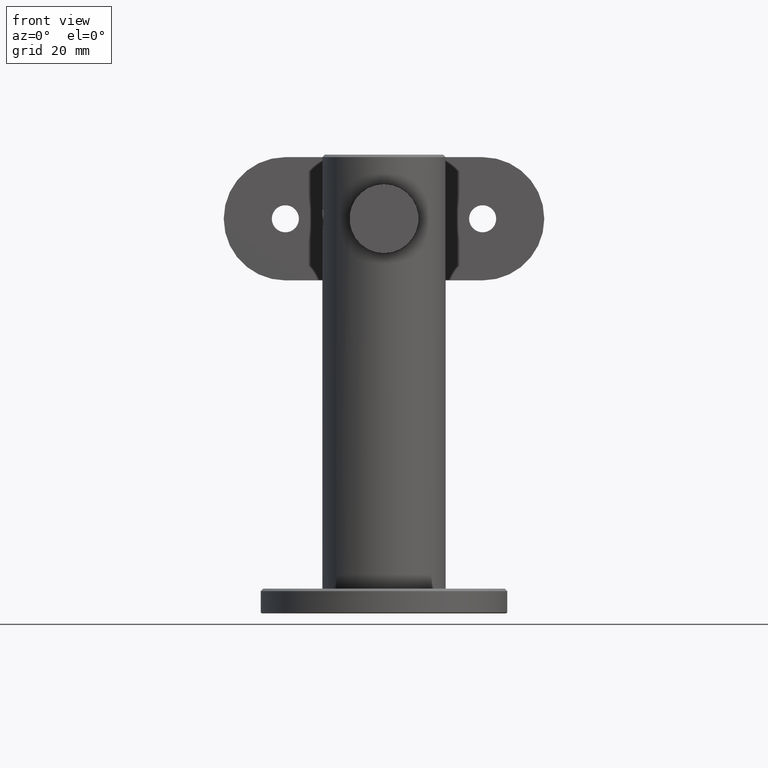
[diagram: clean part render]
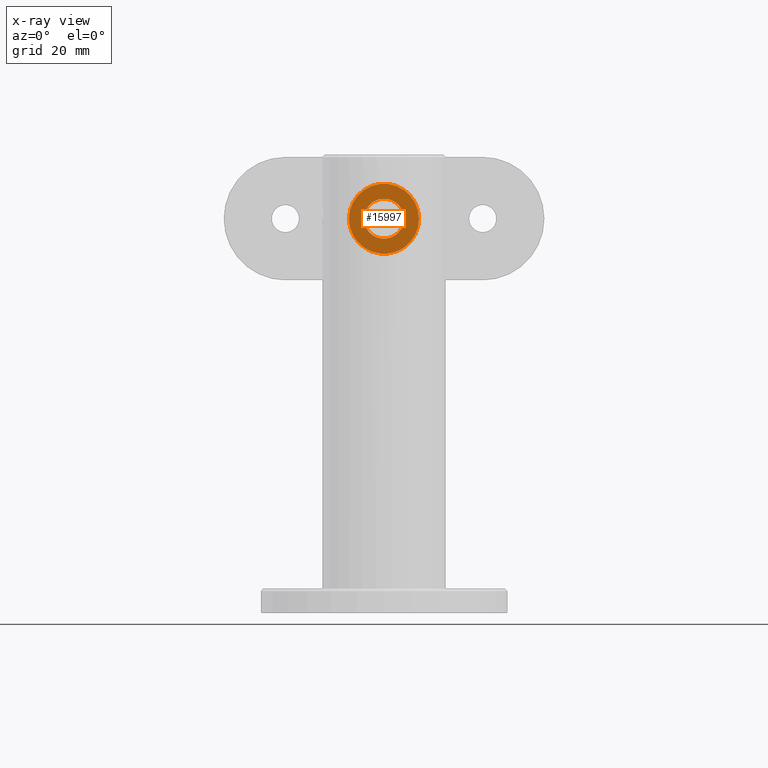
[diagram: x-ray — body ghosted, one internal face saturated and labeled with its STEP entity id]
A machine part, front view, then the same camera in x-ray: the body is ghosted and one INTERNAL B-rep face — a face not visible from any outside direction — is saturated and labeled: STEP entity #15997.
In plain terms, the highlighted planar face has unit normal (0, 1, 0).
Its self-contained STEP definition (entity closure, byte-faithful):
#813 = EDGE_CURVE ( 'NONE', #15694, #15694, #1295, .T. ) ;
#904 = VERTEX_POINT ( 'NONE', #18310 ) ;
#1295 = CIRCLE ( 'NONE', #2615, 7.099999999999999600 ) ;
#1312 = ORIENTED_EDGE ( 'NONE', *, *, #5984, .F. ) ;
#1715 = FACE_BOUND ( 'NONE', #5624, .T. ) ;
#1850 = DIRECTION ( 'NONE',  ( 0.0000000000000000000, 4.581135940079596200E-017, -1.000000000000000000 ) ) ;
#2615 = AXIS2_PLACEMENT_3D ( 'NONE', #10371, #11836, #1850 ) ;
#3404 = DIRECTION ( 'NONE',  ( 0.0000000000000000000, -3.930341565224662700E-017, 1.000000000000000000 ) ) ;
#3790 = FACE_OUTER_BOUND ( 'NONE', #10133, .T. ) ;
#4488 = DIRECTION ( 'NONE',  ( 0.0000000000000000000, 2.677042401198776600E-017, -1.000000000000000000 ) ) ;
#5624 = EDGE_LOOP ( 'NONE', ( #1312 ) ) ;
#5984 = EDGE_CURVE ( 'NONE', #904, #904, #8430, .T. ) ;
#8430 = CIRCLE ( 'NONE', #18219, 4.049999999999999800 ) ;
#9394 = DIRECTION ( 'NONE',  ( 0.0000000000000000000, 1.000000000000000000, 3.930341565224662700E-017 ) ) ;
#10133 = EDGE_LOOP ( 'NONE', ( #15374 ) ) ;
#10371 = CARTESIAN_POINT ( 'NONE',  ( 0.0000000000000000000, 0.4999999999999961100, -4.519892800008362000E-016 ) ) ;
#10551 = CARTESIAN_POINT ( 'NONE',  ( 0.0000000000000000000, 0.4999999999999964500, -7.100000000000000500 ) ) ;
#11836 = DIRECTION ( 'NONE',  ( -0.0000000000000000000, -1.000000000000000000, -3.930341565224662700E-017 ) ) ;
#13629 = PLANE ( 'NONE',  #17265 ) ;
#15255 = CARTESIAN_POINT ( 'NONE',  ( 0.0000000000000000000, 0.4999999999999964500, -7.099999999999999600 ) ) ;
#15374 = ORIENTED_EDGE ( 'NONE', *, *, #813, .T. ) ;
#15694 = VERTEX_POINT ( 'NONE', #10551 ) ;
#15997 = ADVANCED_FACE ( 'NONE', ( #1715, #3790 ), #13629, .F. ) ;
#17265 = AXIS2_PLACEMENT_3D ( 'NONE', #15255, #9394, #3404 ) ;
#17853 = DIRECTION ( 'NONE',  ( -0.0000000000000000000, -1.000000000000000000, -3.930341565224662700E-017 ) ) ;
#18219 = AXIS2_PLACEMENT_3D ( 'NONE', #19130, #17853, #4488 ) ;
#18310 = CARTESIAN_POINT ( 'NONE',  ( 0.0000000000000000000, 0.4999999999999962300, -4.050000000000000700 ) ) ;
#19130 = CARTESIAN_POINT ( 'NONE',  ( 0.0000000000000000000, 0.4999999999999961100, -4.519892800008362000E-016 ) ) ;